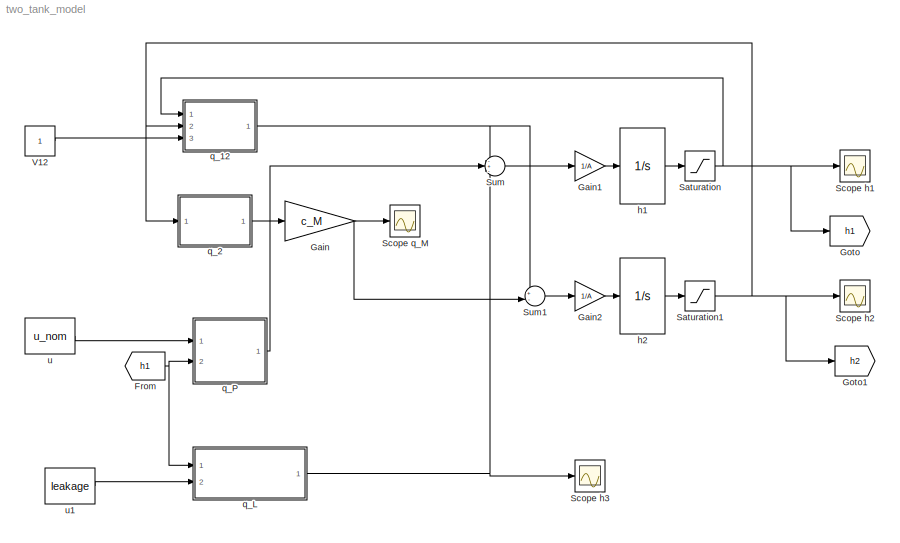
MODEL two_tank_model
KIND model
BLOCK [From] From
  GotoTag = h1
  SID = 16
BLOCK [Gain] Gain
  Gain = c_M
  SID = 14
BLOCK [Gain] Gain1
  Gain = 1/A
  SID = 20
BLOCK [Gain] Gain2
  Gain = 1/A
  SID = 21
BLOCK [Goto] Goto
  GotoTag = h1
  SID = 9
BLOCK [Goto] Goto1
  GotoTag = h2
  SID = 10
BLOCK [Saturate] Saturation
  LowerLimit = 0
  SID = 22
  UpperLimit = h_max
BLOCK [Saturate] Saturation1
  LowerLimit = 0
  SID = 23
  UpperLimit = h_max
BLOCK [Scope] Scope h1
  DataFormat = StructureWithTime
  Decimation = 1
  Floating = off
  Grid = on
  LimitDataPoints = off
  MaxDataPoints = 5000
  NumInputPorts = 1
  Ports = [1]
  SID = 7
  SampleInput = off
  SampleTime = -1
  SaveName = ScopeData
  SaveToWorkspace = off
  ShowLegends = off
  TickLabels = OneTimeTick
  TimeRange = auto
  YMax = 0.32039
  YMin = 0.23308
  ZoomMode = on
BLOCK [Scope] Scope h2
  DataFormat = StructureWithTime
  Decimation = 1
  Floating = off
  Grid = on
  LimitDataPoints = off
  MaxDataPoints = 5000
  NumInputPorts = 1
  Ports = [1]
  SID = 8
  SampleInput = off
  SampleTime = -1
  SaveName = ScopeData1
  SaveToWorkspace = off
  ShowLegends = off
  TickLabels = OneTimeTick
  TimeRange = auto
  YMax = 0.33527
  YMin = -0.01741
  ZoomMode = on
BLOCK [Scope] Scope h3
  DataFormat = StructureWithTime
  Decimation = 1
  Floating = off
  Grid = on
  LimitDataPoints = off
  MaxDataPoints = 5000
  NumInputPorts = 1
  Ports = [1]
  SID = 24
  SampleInput = off
  SampleTime = -1
  SaveName = ScopeData3
  SaveToWorkspace = off
  ShowLegends = off
  TickLabels = OneTimeTick
  TimeRange = auto
  YMax = 1.00000
  YMin = -1.00000
  ZoomMode = on
BLOCK [Scope] Scope q_M
  DataFormat = StructureWithTime
  Decimation = 1
  Floating = off
  Grid = on
  LimitDataPoints = off
  MaxDataPoints = 5000
  NumInputPorts = 1
  Ports = [1]
  SID = 15
  SampleInput = off
  SampleTime = -1
  SaveName = ScopeData2
  SaveToWorkspace = off
  ShowLegends = off
  TickLabels = OneTimeTick
  TimeRange = auto
  YMax = 0.00144
  YMin = 0.0002
  ZoomMode = on
BLOCK [Sum] Sum
  Inputs = -+-
  Ports = [3, 1]
  SID = 3
BLOCK [Sum] Sum1
  Inputs = +-|
  Ports = [2, 1]
  SID = 4
BLOCK [Constant] V12
  SID = 6
BLOCK [Integrator] h1
  InitialCondition = 0.3
  Ports = [1, 1]
  SID = 1
BLOCK [Integrator] h2
  InitialCondition = 0.3
  Ports = [1, 1]
  SID = 2
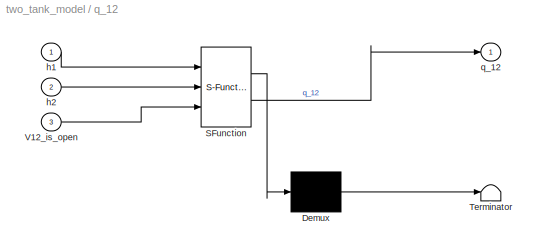
BLOCK [SubSystem] q_12
  ErrorFcn = Stateflow.Translate.translate
  PermitHierarchicalResolution = ParametersOnly
  Ports = [3, 1]
  RequestExecContextInheritance = off
  SFBlockType = MATLAB Function
  SID = 5
  TreatAsAtomicUnit = on
BLOCK [Demux] q_12/ Demux 
  Outputs = 1
  Ports = [1, 1]
  SID = 5::20
BLOCK [S-Function] q_12/ SFunction 
  EnableBusSupport = on
  FunctionName = sf_sfun
  Parameters = c_12
  PortCounts = [3 2]
  Ports = [3, 2]
  SFunctionDeploymentMode = off
  SID = 5::19
  Tag = Stateflow S-Function two_tank_model 2
BLOCK [Terminator] q_12/ Terminator 
  SID = 5::21
BLOCK [Inport] q_12/V12_is_open
  Port = 3
  SID = 5::23
BLOCK [Inport] q_12/h1
  SID = 5::1
BLOCK [Inport] q_12/h2
  Port = 2
  SID = 5::22
BLOCK [Outport] q_12/q_12
  SID = 5::5
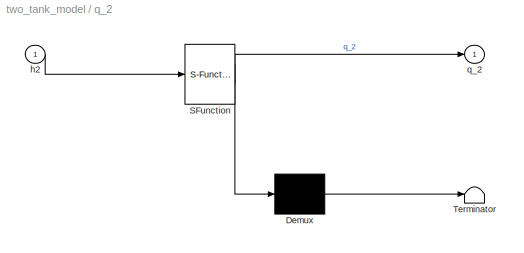
BLOCK [SubSystem] q_2
  ErrorFcn = Stateflow.Translate.translate
  PermitHierarchicalResolution = ParametersOnly
  Ports = [1, 1]
  RequestExecContextInheritance = off
  SFBlockType = MATLAB Function
  SID = 11
  TreatAsAtomicUnit = on
BLOCK [Demux] q_2/ Demux 
  Outputs = 1
  Ports = [1, 1]
  SID = 11::20
BLOCK [S-Function] q_2/ SFunction 
  EnableBusSupport = on
  FunctionName = sf_sfun
  Parameters = c_2
  PortCounts = [1 2]
  Ports = [1, 2]
  SFunctionDeploymentMode = off
  SID = 11::19
  Tag = Stateflow S-Function two_tank_model 1
BLOCK [Terminator] q_2/ Terminator 
  SID = 11::21
BLOCK [Inport] q_2/h2
  SID = 11::1
BLOCK [Outport] q_2/q_2
  SID = 11::5
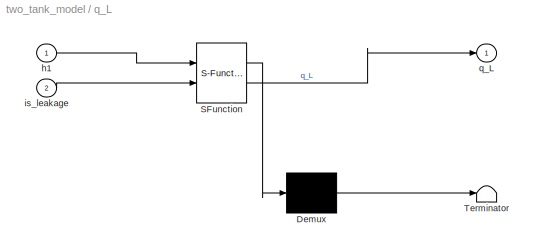
BLOCK [SubSystem] q_L
  ErrorFcn = Stateflow.Translate.translate
  PermitHierarchicalResolution = ParametersOnly
  Ports = [2, 1]
  RequestExecContextInheritance = off
  SFBlockType = MATLAB Function
  SID = 18
  TreatAsAtomicUnit = on
BLOCK [Demux] q_L/ Demux 
  Outputs = 1
  Ports = [1, 1]
  SID = 18::20
BLOCK [S-Function] q_L/ SFunction 
  EnableBusSupport = on
  FunctionName = sf_sfun
  Parameters = c_L
  PortCounts = [2 2]
  Ports = [2, 2]
  SFunctionDeploymentMode = off
  SID = 18::19
  Tag = Stateflow S-Function two_tank_model 4
BLOCK [Terminator] q_L/ Terminator 
  SID = 18::21
BLOCK [Inport] q_L/h1
  SID = 18::1
BLOCK [Inport] q_L/is_leakage
  Port = 2
  SID = 18::22
BLOCK [Outport] q_L/q_L
  SID = 18::5
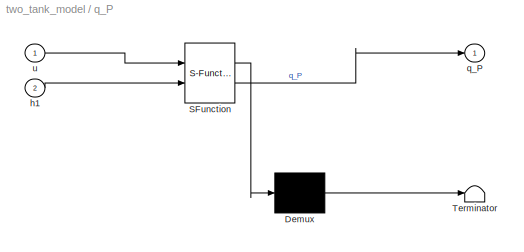
BLOCK [SubSystem] q_P
  ErrorFcn = Stateflow.Translate.translate
  PermitHierarchicalResolution = ParametersOnly
  Ports = [2, 1]
  RequestExecContextInheritance = off
  SFBlockType = MATLAB Function
  SID = 12
  TreatAsAtomicUnit = on
BLOCK [Demux] q_P/ Demux 
  Outputs = 1
  Ports = [1, 1]
  SID = 12::20
BLOCK [S-Function] q_P/ SFunction 
  EnableBusSupport = on
  FunctionName = sf_sfun
  Parameters = h_max,q_bar_P
  PortCounts = [2 2]
  Ports = [2, 2]
  SFunctionDeploymentMode = off
  SID = 12::19
  Tag = Stateflow S-Function two_tank_model 3
BLOCK [Terminator] q_P/ Terminator 
  SID = 12::21
BLOCK [Inport] q_P/h1
  Port = 2
  SID = 12::22
BLOCK [Outport] q_P/q_P
  SID = 12::5
BLOCK [Inport] q_P/u
  SID = 12::1
BLOCK [Constant] u
  SID = 17
  Value = u_nom
BLOCK [Constant] u1
  SID = 19
  Value = leakage
NET From:1 -> q_L:1, q_P:2
LINE Gain1:1 -> h1:1
LINE Gain2:1 -> h2:1
NET Gain:1 -> Scope q_M:1, Sum1:2
NET Saturation1:1 -> Goto1:1, Scope h2:1, q_12:2, q_2:1
NET Saturation:1 -> Goto:1, Scope h1:1, q_12:1
LINE Sum1:1 -> Gain2:1
LINE Sum:1 -> Gain1:1
LINE V12:1 -> q_12:3
LINE h1:1 -> Saturation:1
LINE h2:1 -> Saturation1:1
LINE q_12/ Demux :1 -> q_12/ Terminator :1
LINE q_12/ SFunction :1 -> q_12/ Demux :1
LINE q_12/ SFunction :2 -> q_12/q_12:1
LINE q_12/V12_is_open:1 -> q_12/ SFunction :3
LINE q_12/h1:1 -> q_12/ SFunction :1
LINE q_12/h2:1 -> q_12/ SFunction :2
NET q_12:1 -> Sum1:1, Sum:1
LINE q_2/ Demux :1 -> q_2/ Terminator :1
LINE q_2/ SFunction :1 -> q_2/ Demux :1
LINE q_2/ SFunction :2 -> q_2/q_2:1
LINE q_2/h2:1 -> q_2/ SFunction :1
LINE q_2:1 -> Gain:1
LINE q_L/ Demux :1 -> q_L/ Terminator :1
LINE q_L/ SFunction :1 -> q_L/ Demux :1
LINE q_L/ SFunction :2 -> q_L/q_L:1
LINE q_L/h1:1 -> q_L/ SFunction :1
LINE q_L/is_leakage:1 -> q_L/ SFunction :2
NET q_L:1 -> Scope h3:1, Sum:3
LINE q_P/ Demux :1 -> q_P/ Terminator :1
LINE q_P/ SFunction :1 -> q_P/ Demux :1
LINE q_P/ SFunction :2 -> q_P/q_P:1
LINE q_P/h1:1 -> q_P/ SFunction :2
LINE q_P/u:1 -> q_P/ SFunction :1
LINE q_P:1 -> Sum:2
LINE u1:1 -> q_L:2
LINE u:1 -> q_P:1
note: NET lines group one-source signal fan-out (src -> all destinations, sorted); 1:1 wires keep LINE
CHART q_2 states=1 transitions=1
  STATE_LABEL 'eML_blk_kernel()'
CHART q_12 states=1 transitions=1
  STATE_LABEL 'eML_blk_kernel()'
CHART q_P states=1 transitions=1
  STATE_LABEL 'eML_blk_kernel()'
CHART q_L states=1 transitions=1
  STATE_LABEL 'eML_blk_kernel()'
